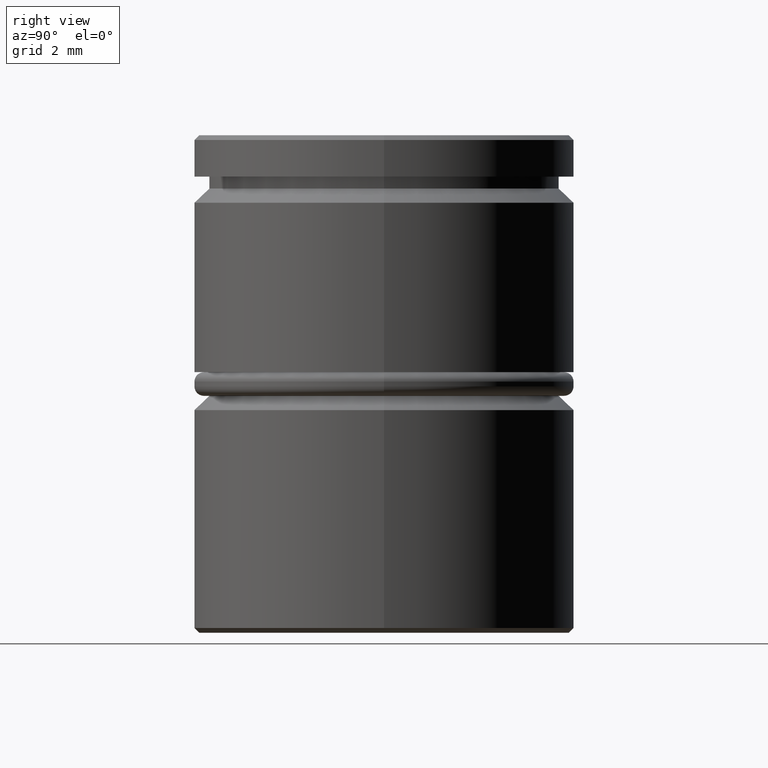
[diagram: clean part render]
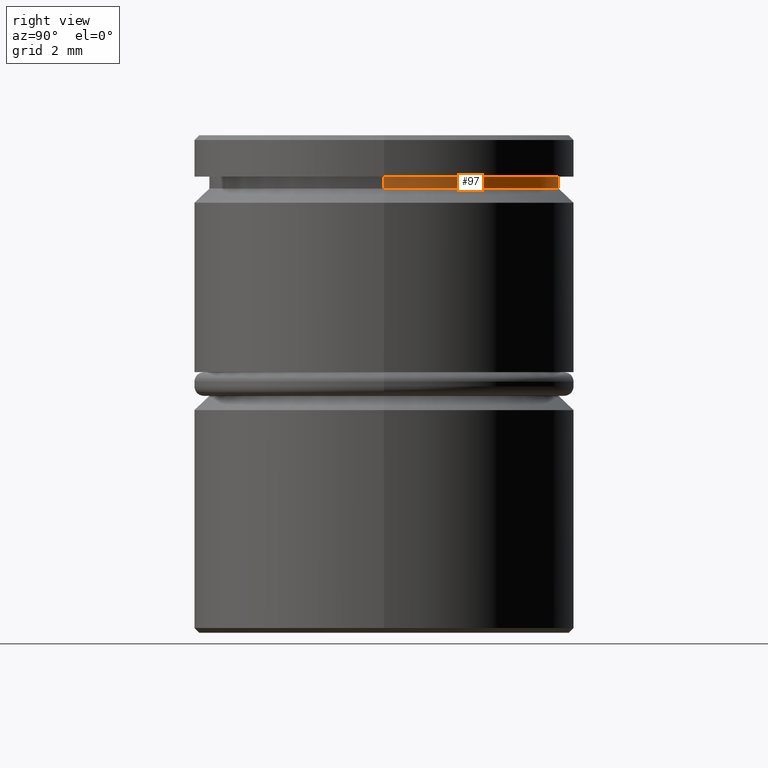
[diagram: same view with one face highlighted and labeled with its STEP entity id]
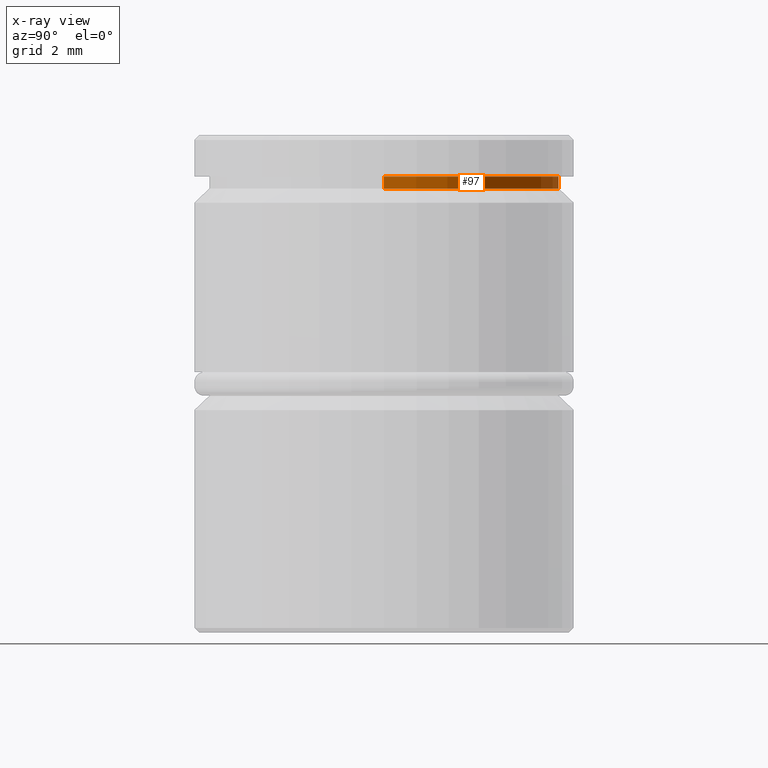
[diagram: x-ray of the same camera — body ghosted, the highlighted face saturated]
A machine part, right view. The second image highlights one B-rep face of the part: STEP entity #97.
The next image is the same camera in x-ray: the body ghosted, the highlighted face saturated — about 0% of this face is hidden behind the body in this view.
In plain terms, the highlighted cylindrical surface (partial cylindrical patch) has radius 3.7 mm, axis along (-0, -0, 1).
Its self-contained STEP definition (entity closure, byte-faithful):
#5 = CARTESIAN_POINT ( 'NONE',  ( -3.700000000000000178, 4.531193156845206201E-16, -1.125000000000000222 ) ) ;
#8 = DIRECTION ( 'NONE',  ( -0.000000000000000000, -0.000000000000000000, 1.000000000000000000 ) ) ;
#14 = VERTEX_POINT ( 'NONE', #5 ) ;
#26 = VERTEX_POINT ( 'NONE', #921 ) ;
#58 = VECTOR ( 'NONE', #1096, 1000.000000000000000 ) ;
#97 = ADVANCED_FACE ( 'NONE', ( #751 ), #828, .T. ) ;
#190 = EDGE_LOOP ( 'NONE', ( #369, #209, #770, #682 ) ) ;
#192 = CIRCLE ( 'NONE', #375, 3.700000000000000178 ) ;
#201 = CARTESIAN_POINT ( 'NONE',  ( 0.000000000000000000, 0.000000000000000000, 0.000000000000000000 ) ) ;
#209 = ORIENTED_EDGE ( 'NONE', *, *, #1000, .T. ) ;
#223 = LINE ( 'NONE', #689, #637 ) ;
#234 = EDGE_CURVE ( 'NONE', #908, #26, #223, .T. ) ;
#354 = CIRCLE ( 'NONE', #720, 3.700000000000000178 ) ;
#357 = DIRECTION ( 'NONE',  ( 1.000000000000000000, 0.000000000000000000, 0.000000000000000000 ) ) ;
#363 = CARTESIAN_POINT ( 'NONE',  ( -3.700000000000000178, 4.531193156845206201E-16, 0.000000000000000000 ) ) ;
#369 = ORIENTED_EDGE ( 'NONE', *, *, #982, .T. ) ;
#375 = AXIS2_PLACEMENT_3D ( 'NONE', #395, #411, #1146 ) ;
#395 = CARTESIAN_POINT ( 'NONE',  ( 0.000000000000000000, 0.000000000000000000, -0.8749999999999998890 ) ) ;
#411 = DIRECTION ( 'NONE',  ( -0.000000000000000000, -0.000000000000000000, 1.000000000000000000 ) ) ;
#486 = CARTESIAN_POINT ( 'NONE',  ( -3.700000000000000178, 4.531193156845206201E-16, -0.8749999999999998890 ) ) ;
#563 = VERTEX_POINT ( 'NONE', #486 ) ;
#622 = CARTESIAN_POINT ( 'NONE',  ( 3.700000000000000178, 0.000000000000000000, -1.125000000000000222 ) ) ;
#637 = VECTOR ( 'NONE', #1133, 1000.000000000000000 ) ;
#651 = DIRECTION ( 'NONE',  ( 1.000000000000000000, 0.000000000000000000, 0.000000000000000000 ) ) ;
#682 = ORIENTED_EDGE ( 'NONE', *, *, #234, .F. ) ;
#689 = CARTESIAN_POINT ( 'NONE',  ( 3.700000000000000178, 0.000000000000000000, 0.000000000000000000 ) ) ;
#720 = AXIS2_PLACEMENT_3D ( 'NONE', #816, #8, #651 ) ;
#751 = FACE_OUTER_BOUND ( 'NONE', #190, .T. ) ;
#770 = ORIENTED_EDGE ( 'NONE', *, *, #876, .F. ) ;
#816 = CARTESIAN_POINT ( 'NONE',  ( 0.000000000000000000, 0.000000000000000000, -1.125000000000000222 ) ) ;
#828 = CYLINDRICAL_SURFACE ( 'NONE', #902, 3.700000000000000178 ) ;
#876 = EDGE_CURVE ( 'NONE', #26, #563, #192, .T. ) ;
#892 = LINE ( 'NONE', #363, #58 ) ;
#902 = AXIS2_PLACEMENT_3D ( 'NONE', #201, #1176, #357 ) ;
#908 = VERTEX_POINT ( 'NONE', #622 ) ;
#921 = CARTESIAN_POINT ( 'NONE',  ( 3.700000000000000178, 0.000000000000000000, -0.8749999999999998890 ) ) ;
#982 = EDGE_CURVE ( 'NONE', #908, #14, #354, .T. ) ;
#1000 = EDGE_CURVE ( 'NONE', #14, #563, #892, .T. ) ;
#1096 = DIRECTION ( 'NONE',  ( -0.000000000000000000, -0.000000000000000000, 1.000000000000000000 ) ) ;
#1133 = DIRECTION ( 'NONE',  ( -0.000000000000000000, -0.000000000000000000, 1.000000000000000000 ) ) ;
#1146 = DIRECTION ( 'NONE',  ( 1.000000000000000000, 0.000000000000000000, 0.000000000000000000 ) ) ;
#1176 = DIRECTION ( 'NONE',  ( -0.000000000000000000, -0.000000000000000000, 1.000000000000000000 ) ) ;